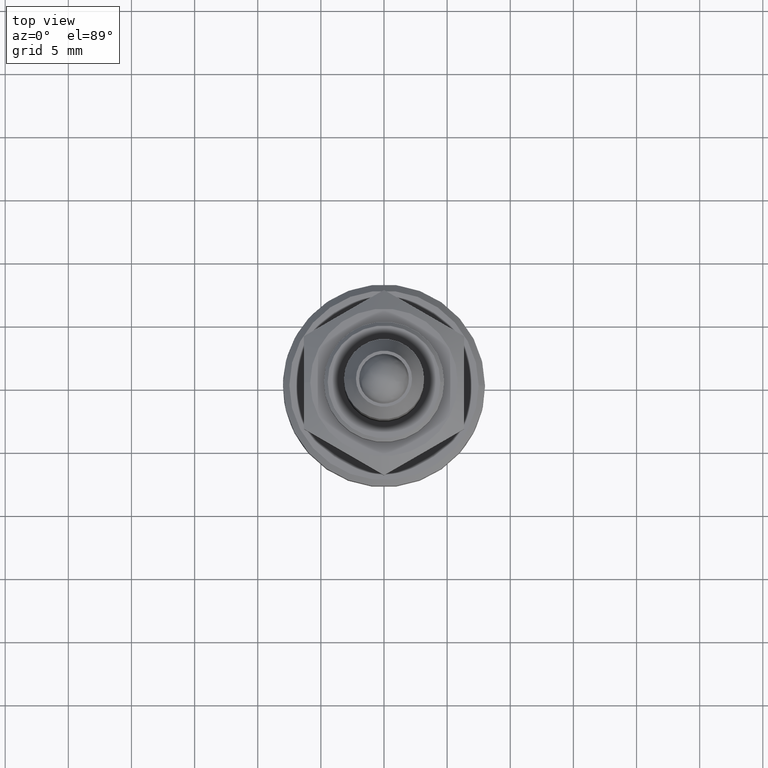
[diagram: clean part render]
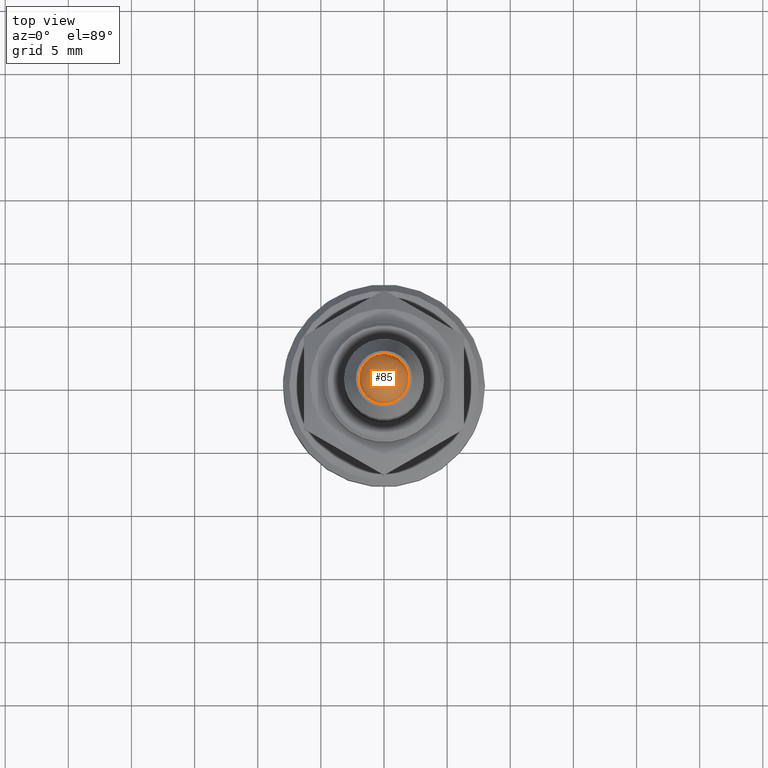
[diagram: same view with one face highlighted and labeled with its STEP entity id]
A machine part, top view. The second image highlights one B-rep face of the part: STEP entity #85.
In plain terms, the highlighted face is a freeform B-spline surface patch.
Its self-contained STEP definition (entity closure, byte-faithful):
#39 = CARTESIAN_POINT ( 'NONE',  ( 1.868021183784665418, -0.6342125535488132293, -1.727199999999992519 ) ) ;
#76 = CARTESIAN_POINT ( 'NONE',  ( -1.199369213643018739, -1.566257066476106408, -1.727200000000000513 ) ) ;
#85 = ADVANCED_FACE ( 'NONE', ( #2016 ), #824, .T. ) ;
#88 = CARTESIAN_POINT ( 'NONE',  ( -0.4255359587114064812, -1.934207223242905505, -1.602860294535704222 ) ) ;
#90 = CARTESIAN_POINT ( 'NONE',  ( 1.708901740994957397, -0.9855366592508183476, -1.727199999999998070 ) ) ;
#101 = CARTESIAN_POINT ( 'NONE',  ( 1.572915416035042702, 1.211150667139889725, -1.727200000000000069 ) ) ;
#250 = CARTESIAN_POINT ( 'NONE',  ( 1.769308536443472191, -0.8725113231445349449, -1.727199999999992741 ) ) ;
#263 = CARTESIAN_POINT ( 'NONE',  ( 0.2591607613274186095, -1.968151608363366112, -1.727200000000000513 ) ) ;
#273 = CARTESIAN_POINT ( 'NONE',  ( -0.9853122375747445094, -1.709037010543206447, -1.727200000000000513 ) ) ;
#283 = CARTESIAN_POINT ( 'NONE',  ( -0.07505621101370424375, -1.979041434581330527, -1.602860294535703778 ) ) ;
#302 = CARTESIAN_POINT ( 'NONE',  ( -1.868021183784665418, 0.6342125535488161159, -1.727199999999992741 ) ) ;
#322 = CARTESIAN_POINT ( 'NONE',  ( -1.968526373601122703, -0.2599702187015943133, -1.727200000000001179 ) ) ;
#431 = CARTESIAN_POINT ( 'NONE',  ( 1.210909647201459549, -1.573117120236767308, -1.727199999999999847 ) ) ;
#453 = CARTESIAN_POINT ( 'NONE',  ( -0.03715850095407677994, -1.983889400699821337, -1.954124327492871238 ) ) ;
#467 = CARTESIAN_POINT ( 'NONE',  ( -1.968526373601122703, -1.101142831430590441E-16, -1.727200000000000735 ) ) ;
#468 = CARTESIAN_POINT ( 'NONE',  ( 3.183027729964995167, -2.040101855752734838, -1.605924145523712321 ) ) ;
#472 = CARTESIAN_POINT ( 'NONE',  ( -0.8722827574780379623, -1.769413922244747583, -1.727199999999999180 ) ) ;
#493 = CARTESIAN_POINT ( 'NONE',  ( 0.2534358881289983656, 1.968896976564131984, -1.727199999999999847 ) ) ;
#515 = CARTESIAN_POINT ( 'NONE',  ( -1.916277732284392243, -0.5183205119479367129, -1.727200000000000957 ) ) ;
#655 = CARTESIAN_POINT ( 'NONE',  ( -2.580513859169511814, 1.963026833886200473, 3.978620457178369652 ) ) ;
#669 = CARTESIAN_POINT ( 'NONE',  ( 1.968526373601123147, -1.219727444046192488E-16, -1.727199999999999847 ) ) ;
#676 = CARTESIAN_POINT ( 'NONE',  ( 0.4634336687710333136, 1.929359257124414029, -1.954124327492871238 ) ) ;
#678 = CARTESIAN_POINT ( 'NONE',  ( -0.5151013225270129059, -1.917340273855817845, -1.727199999999999402 ) ) ;
#702 = CARTESIAN_POINT ( 'NONE',  ( -1.769308536443470636, 0.8725113231445364992, -1.727199999999992297 ) ) ;
#713 = CARTESIAN_POINT ( 'NONE',  ( 1.300618805356185792, 1.483222841300242845, -1.727200000000000513 ) ) ;
#822 = CARTESIAN_POINT ( 'NONE',  ( 1.968526373601123147, -0.1299851093507972677, -1.727200000000000069 ) ) ;
#824 =( BOUNDED_SURFACE ( )  B_SPLINE_SURFACE ( 3, 3, ( 
 ( #453, #283, #88, #870 ),
 ( #468, #1644, #2397, #1053 ),
 ( #2423, #2005, #655, #1240 ),
 ( #676, #1452, #1816, #1417 ) ),
 .UNSPECIFIED., .F., .F., .T. ) 
 B_SPLINE_SURFACE_WITH_KNOTS ( ( 4, 4 ),
 ( 4, 4 ),
 ( 0.000000000000000000, 1.000000000000000000 ),
 ( 0.000000000000000000, 1.000000000000000000 ),
 .UNSPECIFIED. ) 
 GEOMETRIC_REPRESENTATION_ITEM ( )  RATIONAL_B_SPLINE_SURFACE ( (
 ( 1.000000000000000000, 0.4054206371097068828, 0.4054206371097068828, 1.000000000000000000),
 ( 0.4059478766989144116, 0.1645796468046066274, 0.1645796468046066274, 0.4059478766989144116),
 ( 0.4059478766989144116, 0.1645796468046066274, 0.1645796468046066274, 0.4059478766989144116),
 ( 1.000000000000000000, 0.4054206371097068828, 0.4054206371097068828, 1.000000000000000000) ) ) 
 REPRESENTATION_ITEM ( '' )  SURFACE ( )  );
#870 = CARTESIAN_POINT ( 'NONE',  ( -0.4634336687710325364, -1.929359257124414695, -1.954124327492872126 ) ) ;
#883 = CARTESIAN_POINT ( 'NONE',  ( 1.719690372158953373, 0.9916862025150846582, -1.727200000000001179 ) ) ;
#897 = CARTESIAN_POINT ( 'NONE',  ( -1.483116370266021278, 1.300745096795766331, -1.727200000000001179 ) ) ;
#920 = CARTESIAN_POINT ( 'NONE',  ( 1.968526373601123147, 0.2599702187015937027, -1.727199999999999624 ) ) ;
#1045 = CARTESIAN_POINT ( 'NONE',  ( -0.2534358881289983656, -1.968896976564131096, -1.727200000000000291 ) ) ;
#1053 = CARTESIAN_POINT ( 'NONE',  ( -3.594075714578047087, -1.173158501419209410, -1.605924145523713653 ) ) ;
#1084 = CARTESIAN_POINT ( 'NONE',  ( -1.708901740994955842, 0.9855366592508194579, -1.727199999999998070 ) ) ;
#1107 = CARTESIAN_POINT ( 'NONE',  ( -1.955778085138444089, 0.2577991483965070274, -1.727200000000029378 ) ) ;
#1207 = CARTESIAN_POINT ( 'NONE',  ( -1.572915416035042480, -1.211150667139889947, -1.727199999999998958 ) ) ;
#1240 = CARTESIAN_POINT ( 'NONE',  ( -3.183027729964995611, 2.040101855752733950, -1.605924145523713209 ) ) ;
#1266 = CARTESIAN_POINT ( 'NONE',  ( 0.8722827574780358528, 1.769413922244749582, -1.727199999999999847 ) ) ;
#1316 = CARTESIAN_POINT ( 'NONE',  ( -1.905827857495298261, 0.5092626992198038272, -1.727200000000028712 ) ) ;
#1409 = CARTESIAN_POINT ( 'NONE',  ( 0.9914810146569333904, -1.719808678248006650, -1.727199999999999180 ) ) ;
#1417 = CARTESIAN_POINT ( 'NONE',  ( 0.03715850095407582931, 1.983889400699821781, -1.954124327492872126 ) ) ;
#1452 = CARTESIAN_POINT ( 'NONE',  ( 0.4255359587114059261, 1.934207223242905282, -1.602860294535701779 ) ) ;
#1466 = CARTESIAN_POINT ( 'NONE',  ( -0.5180919031608106629, 1.916339550309785089, -1.727200000000000291 ) ) ;
#1477 = CARTESIAN_POINT ( 'NONE',  ( -1.210909647201459105, 1.573117120236766864, -1.727200000000001623 ) ) ;
#1487 = ORIENTED_EDGE ( 'NONE', *, *, #2383, .F. ) ;
#1499 = CARTESIAN_POINT ( 'NONE',  ( -1.566188288227726488, 1.199450671316316663, -1.727199999999997848 ) ) ;
#1598 = CARTESIAN_POINT ( 'NONE',  ( 1.905827857495298483, -0.5092626992198021618, -1.727200000000029600 ) ) ;
#1644 = CARTESIAN_POINT ( 'NONE',  ( 2.580513859169510038, -1.963026833886201583, 3.978620457178366987 ) ) ;
#1646 = CARTESIAN_POINT ( 'NONE',  ( 1.483116370266022388, -1.300745096795765665, -1.727200000000000291 ) ) ;
#1669 = CARTESIAN_POINT ( 'NONE',  ( 1.916277732284391799, 0.5183205119479384893, -1.727200000000000735 ) ) ;
#1680 = CARTESIAN_POINT ( 'NONE',  ( 1.968526373601123147, -1.219727444046192488E-16, -1.727199999999999847 ) ) ;
#1804 = VERTEX_POINT ( 'NONE', #467 ) ;
#1816 = CARTESIAN_POINT ( 'NONE',  ( 0.07505621101370189840, 1.979041434581330972, -1.602860294535702668 ) ) ;
#1855 = CARTESIAN_POINT ( 'NONE',  ( 1.199369213643018295, 1.566257066476106852, -1.727200000000000069 ) ) ;
#1879 = CARTESIAN_POINT ( 'NONE',  ( 0.9853122375747436212, 1.709037010543207780, -1.727200000000000957 ) ) ;
#1993 = CARTESIAN_POINT ( 'NONE',  ( 1.955778085138443201, -0.2577991483965045849, -1.727200000000030711 ) ) ;
#2005 = CARTESIAN_POINT ( 'NONE',  ( 2.991561843782562846, 1.250233523285740667, 3.978620457178369652 ) ) ;
#2008 = CARTESIAN_POINT ( 'NONE',  ( 0.5180919031608104408, -1.916339550309783313, -1.727199999999999847 ) ) ;
#2016 = FACE_OUTER_BOUND ( 'NONE', #2437, .T. ) ;
#2040 = CARTESIAN_POINT ( 'NONE',  ( -1.968526373601123147, 0.1299851093507969901, -1.727200000000001179 ) ) ;
#2087 = CARTESIAN_POINT ( 'NONE',  ( -0.9914810146569349447, 1.719808678248006872, -1.727200000000000513 ) ) ;
#2171 = CARTESIAN_POINT ( 'NONE',  ( -1.300618805356184460, -1.483222841300241512, -1.727199999999999402 ) ) ;
#2228 = CARTESIAN_POINT ( 'NONE',  ( -1.719690372158952485, -0.9916862025150826598, -1.727200000000000513 ) ) ;
#2244 = CARTESIAN_POINT ( 'NONE',  ( -0.2591607613274177213, 1.968151608363365446, -1.727200000000000735 ) ) ;
#2280 = CARTESIAN_POINT ( 'NONE',  ( 0.5151013225270120177, 1.917340273855816069, -1.727199999999999402 ) ) ;
#2307 = B_SPLINE_CURVE_WITH_KNOTS ( 'NONE', 3,
 ( #669, #822, #1993, #1598, #39, #250, #90, #2378, #1646, #431, #1409, #2008, #263, #1045, #678, #472, #273, #76, #2171, #1207, #2228, #515, #322, #2040, #1107, #1316, #302, #702, #1084, #1499, #897, #1477, #2087, #1466, #2244, #493, #2280, #1266, #1879, #1855, #713, #101, #883, #1669, #920, #1680 ),
 .UNSPECIFIED., .T., .F.,
 ( 4, 2, 2, 2, 2, 2, 2, 2, 2, 2, 2, 2, 2, 2, 2, 2, 2, 2, 2, 2, 2, 2, 4 ),
 ( -0.006150727766942362847, -0.005766307281508464139, -0.005381886796074566298, -0.004997466310640668458, -0.004613045825206769750, -0.003844204854338974069, -0.003075363883471178388, -0.002306522912603382706, -0.001922102427169484866, -0.001537681941735586158, -0.0007688409708677904769, 4.336808689942017736E-18, 0.0003844204854339021774, 0.0007688409708677991505, 0.001153261456301697858, 0.001537681941735595699, 0.002306522912603391380, 0.003075363883471188796, 0.003844204854338984477, 0.004228625339772884052, 0.004613045825206781893, 0.005381886796074577574, 0.006150727766942371520 ),
 .UNSPECIFIED. ) ;
#2378 = CARTESIAN_POINT ( 'NONE',  ( 1.566188288227726932, -1.199450671316314887, -1.727199999999997848 ) ) ;
#2383 = EDGE_CURVE ( 'NONE', #1804, #1804, #2307, .T. ) ;
#2397 = CARTESIAN_POINT ( 'NONE',  ( -2.991561843782562846, -1.250233523285742887, 3.978620457178364767 ) ) ;
#2423 = CARTESIAN_POINT ( 'NONE',  ( 3.594075714578048419, 1.173158501419206967, -1.605924145523712321 ) ) ;
#2437 = EDGE_LOOP ( 'NONE', ( #1487 ) ) ;